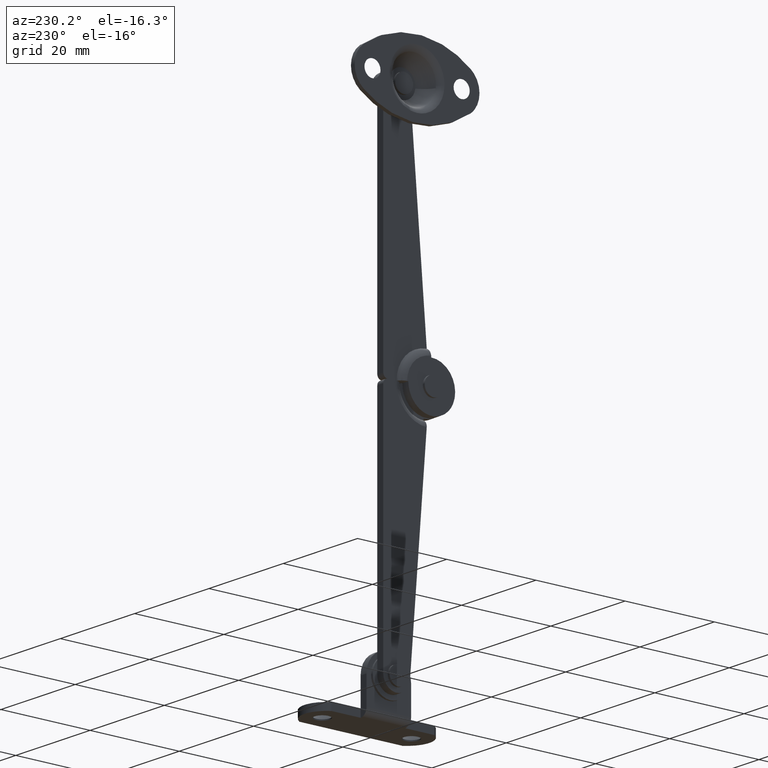
[diagram: clean part render]
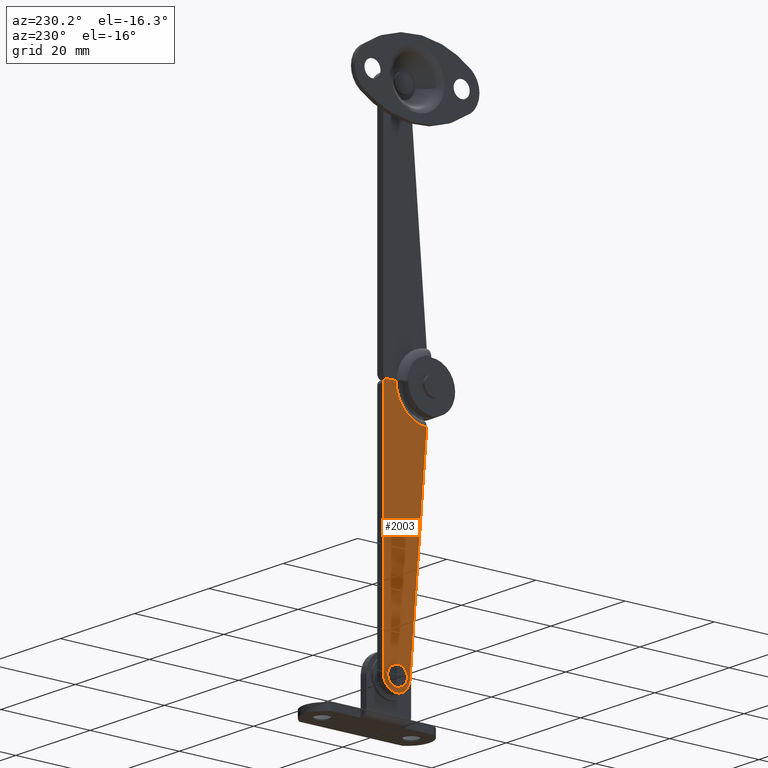
[diagram: same view with one face highlighted and labeled with its STEP entity id]
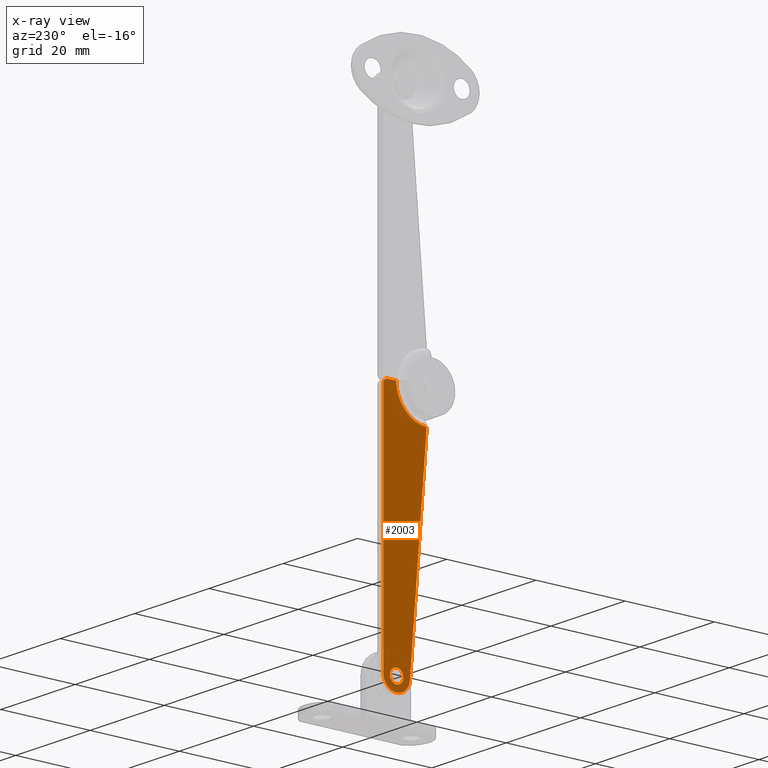
[diagram: x-ray of the same camera — body ghosted, the highlighted face saturated]
A machine part, auxiliary view. The second image highlights one B-rep face of the part: STEP entity #2003.
The next image is the same camera in x-ray: the body ghosted, the highlighted face saturated — about 0% of this face is hidden behind the body in this view.
In plain terms, the highlighted face is a freeform B-spline surface patch.
Its self-contained STEP definition (entity closure, byte-faithful):
#1442=CARTESIAN_POINT('',(7.100006000000000,1.145333999211581,53.968598509856953));
#1443=VERTEX_POINT('',#1442);
#1444=CARTESIAN_POINT('',(7.100006000000000,0.0,54.499984999999903));
#1445=VERTEX_POINT('',#1444);
#1446=CARTESIAN_POINT('',(7.100006000000000,1.145333999211581,53.968598509856953));
#1447=CARTESIAN_POINT('',(7.100006000000005,1.013973586685293,54.124232108965437));
#1448=CARTESIAN_POINT('',(7.100005999999990,0.664848589690814,54.397623387932441));
#1449=CARTESIAN_POINT('',(7.100006000000005,0.230830580079018,54.500383018864433));
#1450=CARTESIAN_POINT('',(7.100006000000000,0.0,54.499984999999903));
#1451=B_SPLINE_CURVE_WITH_KNOTS('',3,(#1446,#1447,#1448,#1449,#1450),.UNSPECIFIED.,.F.,.U.,(4,1,4),(0.000000083459746,0.610912819045222,1.303242752814438),.UNSPECIFIED.);
#1452=EDGE_CURVE('',#1443,#1445,#1451,.T.);
#1454=CARTESIAN_POINT('',(7.100006000000000,-1.499999999997310,52.999982158927168));
#1455=VERTEX_POINT('',#1454);
#1456=CARTESIAN_POINT('',(7.100006000000000,0.0,54.499984999999903));
#1457=CARTESIAN_POINT('',(7.100005999999991,-0.147265013339310,54.500034372287963));
#1458=CARTESIAN_POINT('',(7.100006000000015,-0.441771183018043,54.456287565720103));
#1459=CARTESIAN_POINT('',(7.100006000000017,-0.811827818929227,54.281259683056589));
#1460=CARTESIAN_POINT('',(7.100005999999986,-1.133057683493864,54.010968472496153));
#1461=CARTESIAN_POINT('',(7.100006000000029,-1.414392963919004,53.601097765082272));
#1462=CARTESIAN_POINT('',(7.100005999999980,-1.500332220788157,53.220925441449637));
#1463=CARTESIAN_POINT('',(7.100006000000000,-1.499999999997310,52.999982158927168));
#1464=B_SPLINE_CURVE_WITH_KNOTS('',3,(#1456,#1457,#1458,#1459,#1460,#1461,#1462,#1463),.UNSPECIFIED.,.F.,.U.,(4,1,1,1,1,4),(0.000000284000482,0.441792961268634,0.883617538712170,1.214902395013145,1.693554774463091,2.356255217872312),.UNSPECIFIED.);
#1465=EDGE_CURVE('',#1445,#1455,#1464,.T.);
#1467=CARTESIAN_POINT('',(7.100006000000000,0.0,51.499984999999903));
#1468=VERTEX_POINT('',#1467);
#1469=CARTESIAN_POINT('',(7.100006000000000,-1.499999999997310,52.999982158927168));
#1470=CARTESIAN_POINT('',(7.100006000000003,-1.500127242303660,52.828161071356810));
#1471=CARTESIAN_POINT('',(7.100005999999994,-1.444557688569273,52.509177031757702));
#1472=CARTESIAN_POINT('',(7.100006000000010,-1.239902297243362,52.126254999488282));
#1473=CARTESIAN_POINT('',(7.100005999999989,-0.970956452673777,51.836812453559283));
#1474=CARTESIAN_POINT('',(7.100006000000005,-0.576543819122884,51.580030639284963));
#1475=CARTESIAN_POINT('',(7.100006000000032,-0.220948269507621,51.499692220062940));
#1476=CARTESIAN_POINT('',(7.100006000000000,0.0,51.499984999999903));
#1477=B_SPLINE_CURVE_WITH_KNOTS('',3,(#1469,#1470,#1471,#1472,#1473,#1474,#1475,#1476),.UNSPECIFIED.,.F.,.U.,(4,1,1,1,1,4),(0.000000287885968,0.515426608275942,0.957229316924845,1.288574184433406,1.693552470179191,2.356252015241231),.UNSPECIFIED.);
#1478=EDGE_CURVE('',#1455,#1468,#1477,.T.);
#1480=CARTESIAN_POINT('',(7.100005999962852,1.032531529773624,51.911924104581537));
#1481=VERTEX_POINT('',#1480);
#1482=CARTESIAN_POINT('',(7.100006000000000,0.0,51.499984999999903));
#1483=CARTESIAN_POINT('',(7.100005999994453,0.154214511178196,51.499924795164027));
#1484=CARTESIAN_POINT('',(7.100005999980794,0.533825885493235,51.559001369392149));
#1485=CARTESIAN_POINT('',(7.100005999968722,0.869235603567218,51.756451091152989));
#1486=CARTESIAN_POINT('',(7.100005999962852,1.032531529773624,51.911924104581537));
#1487=B_SPLINE_CURVE_WITH_KNOTS('',3,(#1482,#1483,#1484,#1485,#1486),.UNSPECIFIED.,.F.,.U.,(4,1,4),(0.000000055591615,0.462664644830563,1.138853985102380),.UNSPECIFIED.);
#1488=EDGE_CURVE('',#1468,#1481,#1487,.T.);
#1565=CARTESIAN_POINT('',(7.100006000000000,1.499999999997310,52.999987841072610));
#1566=VERTEX_POINT('',#1565);
#1567=CARTESIAN_POINT('',(7.100006000000000,1.499999999997310,52.999987841072610));
#1568=CARTESIAN_POINT('',(7.100006000000005,1.500173856311225,53.186473857375113));
#1569=CARTESIAN_POINT('',(7.100006000000013,1.433636525695467,53.537326856683507));
#1570=CARTESIAN_POINT('',(7.100005999999985,1.251659318544574,53.843017959906092));
#1571=CARTESIAN_POINT('',(7.100006000000000,1.145333999211581,53.968598509856953));
#1572=B_SPLINE_CURVE_WITH_KNOTS('',3,(#1567,#1568,#1569,#1570,#1571),.UNSPECIFIED.,.F.,.U.,(4,1,4),(0.000000047971791,0.559395055172705,1.053010571155514),.UNSPECIFIED.);
#1573=EDGE_CURVE('',#1566,#1443,#1572,.T.);
#1595=CARTESIAN_POINT('',(7.100005999962852,1.032531529773624,51.911924104581537));
#1596=CARTESIAN_POINT('',(7.100005999968512,1.207708359321426,52.077500991179100));
#1597=CARTESIAN_POINT('',(7.100005999980505,1.432501370649850,52.429345551463072));
#1598=CARTESIAN_POINT('',(7.100005999994383,1.500068356021896,52.835139349856853));
#1599=CARTESIAN_POINT('',(7.100006000000000,1.499999999997310,52.999987841072610));
#1600=B_SPLINE_CURVE_WITH_KNOTS('',3,(#1595,#1596,#1597,#1598,#1599),.UNSPECIFIED.,.F.,.U.,(4,1,4),(0.000000077542920,0.722828643846483,1.217402112037051),.UNSPECIFIED.);
#1601=EDGE_CURVE('',#1481,#1566,#1600,.T.);
#1623=CARTESIAN_POINT('',(7.100006000000000,0.100005948289692,-8.483039E-014));
#1624=VERTEX_POINT('',#1623);
#1637=CARTESIAN_POINT('',(7.100006000000000,-6.747916441950870,7.095529461957770));
#1638=VERTEX_POINT('',#1637);
#1639=CARTESIAN_POINT('',(7.100006000000000,-6.747916441950870,7.095529461957770));
#1640=CARTESIAN_POINT('',(7.100006000000023,-6.095401901361301,7.072579369209080));
#1641=CARTESIAN_POINT('',(7.100005999999949,-4.966388051505259,6.874364087968004));
#1642=CARTESIAN_POINT('',(7.100006000000055,-3.450733636489392,6.209591642036773));
#1643=CARTESIAN_POINT('',(7.100005999999968,-2.337893017384834,5.409643150943991));
#1644=CARTESIAN_POINT('',(7.100005999999995,-1.355404281077508,4.379316725586378));
#1645=CARTESIAN_POINT('',(7.100006000000041,-0.646453038709678,3.272682672573277));
#1646=CARTESIAN_POINT('',(7.100005999999939,-0.056526053532309,1.759818021675964));
#1647=CARTESIAN_POINT('',(7.100006000000047,0.100278305835853,0.681324070240262));
#1648=CARTESIAN_POINT('',(7.100006000000000,0.100005948289692,-8.483039E-014));
#1649=B_SPLINE_CURVE_WITH_KNOTS('',3,(#1639,#1640,#1641,#1642,#1643,#1644,#1645,#1646,#1647,#1648),.UNSPECIFIED.,.F.,.U.,(4,1,1,1,1,1,1,4),(0.000000120483387,1.958695509235664,3.406436618865630,4.939364895262663,6.046420927351404,7.664470476828952,8.856734262206928,10.900592052356769),.UNSPECIFIED.);
#1650=EDGE_CURVE('',#1638,#1624,#1649,.T.);
#1927=CARTESIAN_POINT('',(7.100006000000000,-7.234824666320034,58.797019909233313));
#1928=CARTESIAN_POINT('',(7.100006000000000,3.486908660134986,58.797019909233313));
#1929=CARTESIAN_POINT('',(7.100006000000000,-7.234824666320034,-2.797192831027103));
#1930=CARTESIAN_POINT('',(7.100006000000000,3.486908660134986,-2.797192831027103));
#1931=B_SPLINE_SURFACE_WITH_KNOTS('',1,1,((#1927,#1929),(#1928,#1930)),.UNSPECIFIED.,.F.,.F.,.U.,(2,2),(2,2),(0.0,10.721733326455020),(0.0,61.594212740260410),.UNSPECIFIED.);
#1932=CARTESIAN_POINT('',(7.100006000000000,-2.990626677684695,53.236949289969097));
#1933=VERTEX_POINT('',#1932);
#1934=CARTESIAN_POINT('',(7.100006000000000,-2.990626677684695,53.236949289969097));
#1935=CARTESIAN_POINT('',(7.100006000000000,-6.747916441950870,7.095529461957770));
#1936=QUASI_UNIFORM_CURVE('',1,(#1934,#1935),.UNSPECIFIED.,.F.,.U.);
#1937=EDGE_CURVE('',#1933,#1638,#1936,.T.);
#1938=ORIENTED_EDGE('',*,*,#1937,.T.);
#1939=ORIENTED_EDGE('',*,*,#1650,.T.);
#1940=CARTESIAN_POINT('',(7.100006000000000,1.999999999999885,1.224606E-016));
#1941=VERTEX_POINT('',#1940);
#1942=CARTESIAN_POINT('',(7.100006000000000,0.100005948289692,-8.483039E-014));
#1943=CARTESIAN_POINT('',(7.100006000000000,1.999999999999885,1.224606E-016));
#1944=QUASI_UNIFORM_CURVE('',1,(#1942,#1943),.UNSPECIFIED.,.F.,.U.);
#1945=EDGE_CURVE('',#1624,#1941,#1944,.T.);
#1946=ORIENTED_EDGE('',*,*,#1945,.T.);
#1947=CARTESIAN_POINT('',(7.100006000000000,2.999999999999885,1.0));
#1948=VERTEX_POINT('',#1947);
#1949=CARTESIAN_POINT('',(7.100006000000000,1.999999999999885,1.224606E-016));
#1950=CARTESIAN_POINT('',(7.100006000000009,2.106362298682517,-0.000054953956001));
#1951=CARTESIAN_POINT('',(7.100005999999997,2.319048350500146,0.034244608022732));
#1952=CARTESIAN_POINT('',(7.100006000000006,2.605917006084868,0.183036336924974));
#1953=CARTESIAN_POINT('',(7.100005999999996,2.808412965767549,0.390625674151962));
#1954=CARTESIAN_POINT('',(7.100006000000025,2.959241255101190,0.664674816077289));
#1955=CARTESIAN_POINT('',(7.100005999999976,3.000124273918489,0.869074501413287));
#1956=CARTESIAN_POINT('',(7.100006000000000,2.999999999999885,1.0));
#1957=B_SPLINE_CURVE_WITH_KNOTS('',3,(#1949,#1950,#1951,#1952,#1953,#1954,#1955,#1956),.UNSPECIFIED.,.F.,.U.,(4,1,1,1,1,4),(0.000000280012505,0.319075622355464,0.638181018193570,0.957225950732049,1.178126924052064,1.570835744389278),.UNSPECIFIED.);
#1958=EDGE_CURVE('',#1941,#1948,#1957,.T.);
#1959=ORIENTED_EDGE('',*,*,#1958,.T.);
#1960=CARTESIAN_POINT('',(7.100006000000000,3.0,52.999985000000002));
#1961=VERTEX_POINT('',#1960);
#1962=CARTESIAN_POINT('',(7.100006000000000,2.999999999999885,1.0));
#1963=CARTESIAN_POINT('',(7.100006000000000,3.0,52.999985000000002));
#1964=QUASI_UNIFORM_CURVE('',1,(#1962,#1963),.UNSPECIFIED.,.F.,.U.);
#1965=EDGE_CURVE('',#1948,#1961,#1964,.T.);
#1966=ORIENTED_EDGE('',*,*,#1965,.T.);
#1967=CARTESIAN_POINT('',(7.100005999999999,0.118572758815866,55.997640834292213));
#1968=VERTEX_POINT('',#1967);
#1969=CARTESIAN_POINT('',(7.100006000000000,3.0,52.999985000000002));
#1970=CARTESIAN_POINT('',(7.100006000000000,3.000302113592070,53.358925864813692));
#1971=CARTESIAN_POINT('',(7.100005999999991,2.900015859049991,53.908994399671762));
#1972=CARTESIAN_POINT('',(7.100006000000020,2.572758092677641,54.578425519945803));
#1973=CARTESIAN_POINT('',(7.100005999999981,2.225503749921880,55.039035621800473));
#1974=CARTESIAN_POINT('',(7.100006000000011,1.761247011298811,55.457368651986677));
#1975=CARTESIAN_POINT('',(7.100005999999985,1.070409780366281,55.851237363361513));
#1976=CARTESIAN_POINT('',(7.100006000000008,0.477231879643304,55.983744094961096));
#1977=CARTESIAN_POINT('',(7.100005999999999,0.118572758815866,55.997640834292213));
#1978=B_SPLINE_CURVE_WITH_KNOTS('',3,(#1969,#1970,#1971,#1972,#1973,#1974,#1975,#1976,#1977),.UNSPECIFIED.,.F.,.U.,(4,1,1,1,1,1,4),(0.000000108022573,1.076690841220615,1.650946059194618,2.225180609173973,2.799377196689447,3.517204142899388,4.593894876097145),.UNSPECIFIED.);
#1979=EDGE_CURVE('',#1961,#1968,#1978,.T.);
#1980=ORIENTED_EDGE('',*,*,#1979,.T.);
#1981=CARTESIAN_POINT('',(7.100005999999999,0.118572758815866,55.997640834292213));
#1982=CARTESIAN_POINT('',(7.100006000000002,-0.192239383245740,56.010118419664728));
#1983=CARTESIAN_POINT('',(7.100006000000002,-0.649191902254406,55.956583630482633));
#1984=CARTESIAN_POINT('',(7.100005999999995,-1.259056433384706,55.738534299048283));
#1985=CARTESIAN_POINT('',(7.100006000000006,-1.846341678695107,55.409749115997691));
#1986=CARTESIAN_POINT('',(7.100005999999984,-2.401512785933164,54.867036104196302));
#1987=CARTESIAN_POINT('',(7.100006000000003,-2.836467867486884,54.088675480007460));
#1988=CARTESIAN_POINT('',(7.100006000000001,-2.966227164364505,53.547045702599320));
#1989=CARTESIAN_POINT('',(7.100006000000000,-2.990626677684695,53.236949289969097));
#1990=B_SPLINE_CURVE_WITH_KNOTS('',3,(#1981,#1982,#1983,#1984,#1985,#1986,#1987,#1988,#1989),.UNSPECIFIED.,.F.,.U.,(4,1,1,1,1,1,4),(0.000000108025511,0.933127727255407,1.363817828731245,1.938081223379662,2.942946305970156,3.660763168667776,4.593890787898443),.UNSPECIFIED.);
#1991=EDGE_CURVE('',#1968,#1933,#1990,.T.);
#1992=ORIENTED_EDGE('',*,*,#1991,.T.);
#1993=EDGE_LOOP('',(#1938,#1939,#1946,#1959,#1966,#1980,#1992));
#1994=FACE_OUTER_BOUND('',#1993,.T.);
#1995=ORIENTED_EDGE('',*,*,#1465,.F.);
#1996=ORIENTED_EDGE('',*,*,#1452,.F.);
#1997=ORIENTED_EDGE('',*,*,#1573,.F.);
#1998=ORIENTED_EDGE('',*,*,#1601,.F.);
#1999=ORIENTED_EDGE('',*,*,#1488,.F.);
#2000=ORIENTED_EDGE('',*,*,#1478,.F.);
#2001=EDGE_LOOP('',(#1995,#1996,#1997,#1998,#1999,#2000));
#2002=FACE_BOUND('',#2001,.T.);
#2003=ADVANCED_FACE('',(#1994,#2002),#1931,.F.);